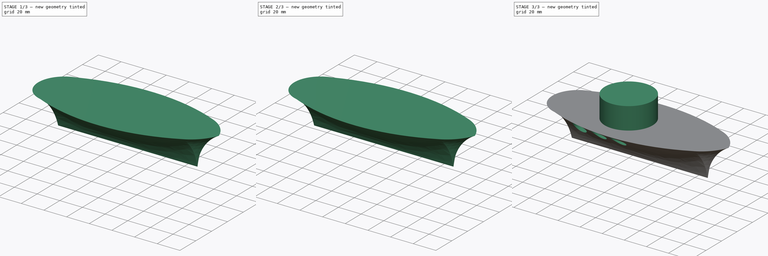
[diagram: build sequence overview — one tinted view per stage of 3, left to right]
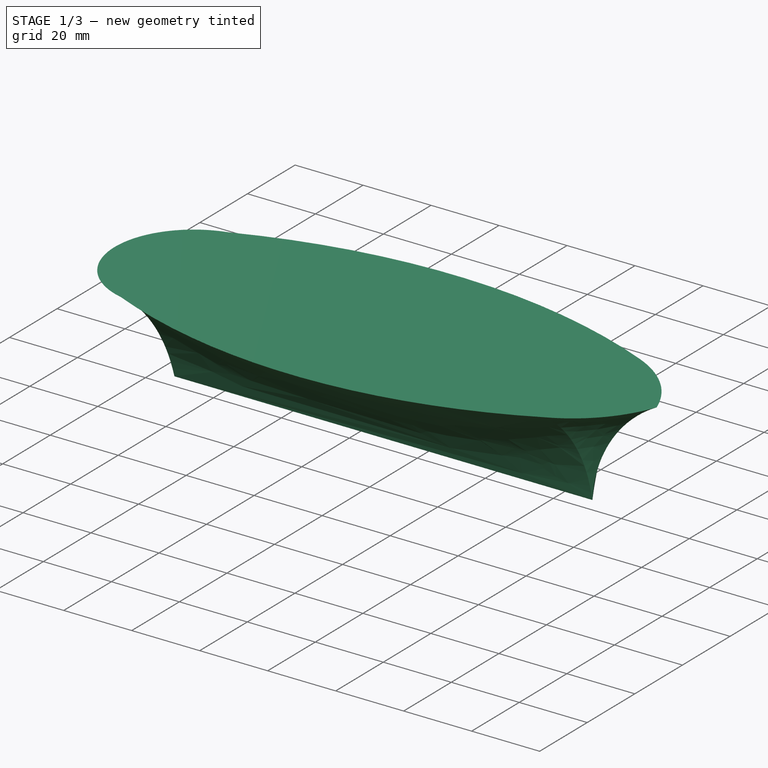
[diagram: stage 1 of 3 — iso view after this stage's code; geometry added in this stage tinted green]
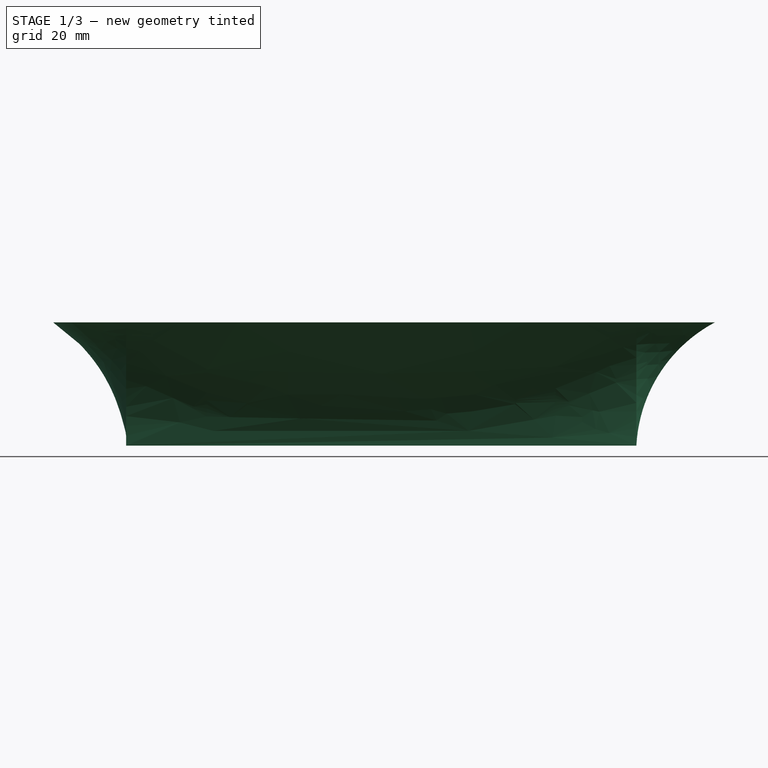
[diagram: stage 1 of 3 — front view after this stage's code; geometry added in this stage tinted green]
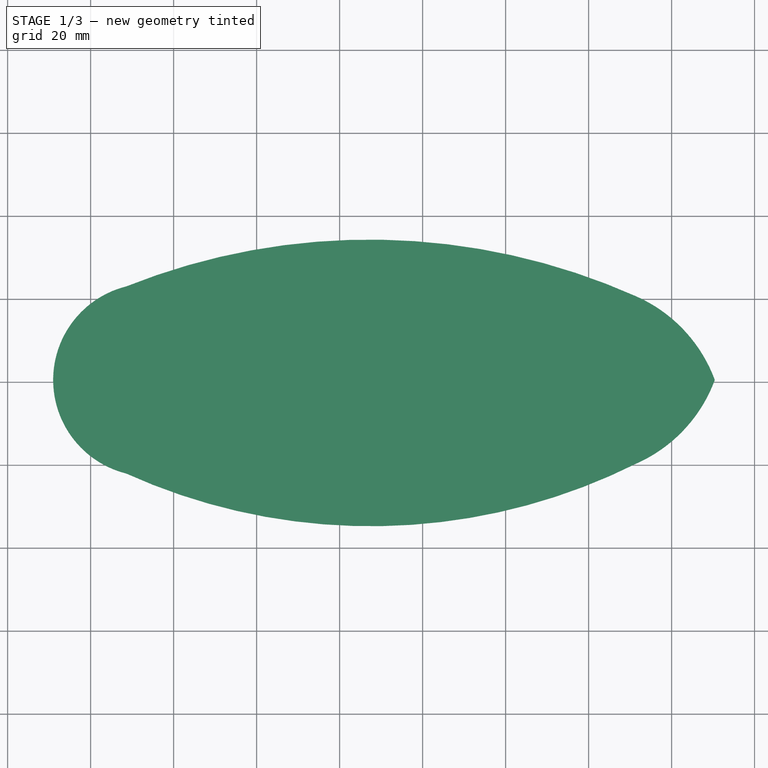
[diagram: stage 1 of 3 — top view after this stage's code; geometry added in this stage tinted green]
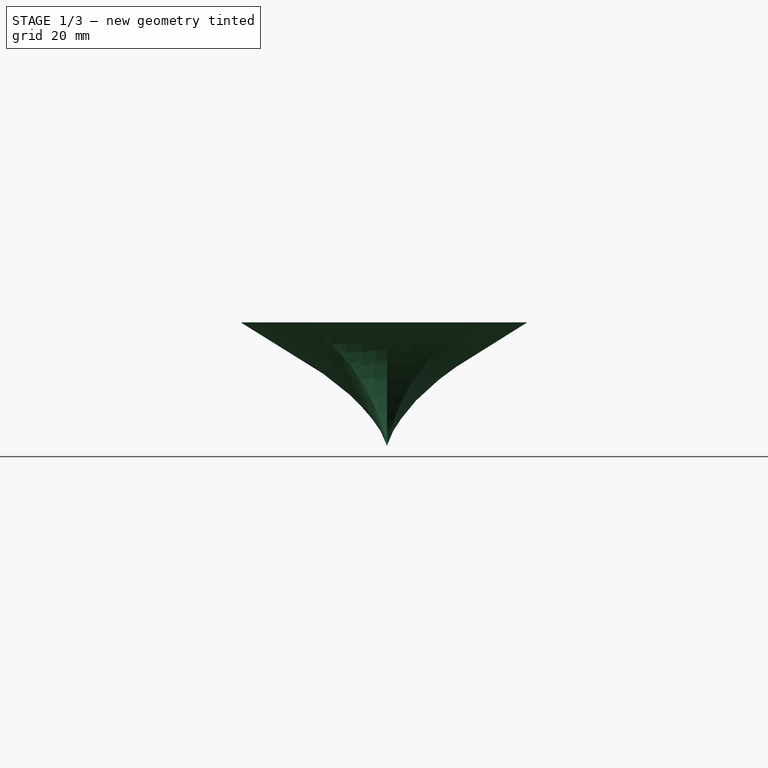
[diagram: stage 1 of 3 — right view after this stage's code; geometry added in this stage tinted green]
FCSTD DOCUMENT  (FreeCAD 0.21RUnknown)
Label: part19
License: All rights reserved
LicenseURL: http://en.wikipedia.org/wiki/All_rights_reserved
objects: Surface::Filling×9, Sketcher::SketchObject×7, Part::Compound×4, Part::RuledSurface×3, Part::Feature×3, Part::MultiFuse×1, PartDesign::FeatureBase×1, PartDesign::Pad×1, PartDesign::Pocket×1, PartDesign::Body×1
note: 33 computed .brp shape members not serialized (recipe doc carries the construction recipe); baked Part::Feature solids carry a one-line shape summary decoded from their .brp

FEATURE [Sketcher::SketchObject] Sketch
  FullyConstrained = false
  sketch-geometry (7):
    g0: ArcOfCircle CenterX=-45.7928 CenterY=0 CenterZ=0 NormalX=0 NormalY=0 NormalZ=1 AngleXU=0 Radius=23.2415 StartAngle=1.81692 EndAngle=4.46626
    g1: ArcOfCircle CenterX=57.1509 CenterY=-12.2691 CenterZ=0 NormalX=0 NormalY=0 NormalZ=1 AngleXU=0 Radius=35.4553 StartAngle=0.35335 EndAngle=1.15375
    g2: ArcOfCircle CenterX=57.1509 CenterY=12.2691 CenterZ=0 NormalX=0 NormalY=0 NormalZ=1 AngleXU=0 Radius=35.4553 StartAngle=5.12944 EndAngle=5.92984
    g3: ArcOfCircle CenterX=7.19704 CenterY=-124.107 CenterZ=0 NormalX=0 NormalY=0 NormalZ=1 AngleXU=0 Radius=157.943 StartAngle=1.1514 EndAngle=1.95126
    g4: ArcOfCircle CenterX=7.51242 CenterY=107.906 CenterZ=0 NormalX=0 NormalY=0 NormalZ=1 AngleXU=0 Radius=143.156 StartAngle=4.28784 EndAngle=5.17587
    g5: LineSegment StartX=90.4157 StartY=5.3e-15 StartZ=0 EndX=71.5126 EndY=0 EndZ=0
    g6: LineSegment StartX=-69.0343 StartY=0 StartZ=0 EndX=-51.4556 EndY=0 EndZ=0
  constraints (17):
    c: PointOnObject(g1,g-1)
    c: Coincident(g2,g1)
    c: Symmetric(g2,g1,g-1)
    c: PointOnObject(g0,g-1)
    c: Coincident(g3,g0)
    c: Coincident(g3,g1)
    c: Coincident(g4,g0)
    c: Coincident(g4,g2)
    c: Vertical(g0,g0)
    c: Vertical(g2,g1)
    c: Coincident(g5,g1)
    c: PointOnObject(g5,g-1)
    c: Vertical(g5,g1)
    c: PointOnObject(g6,g0)
    c: Horizontal(g6)
    c: PointOnObject(g6,g-1)
    c: Vertical(g6,g0)
FEATURE [Sketcher::SketchObject] Sketch001
  ExternalGeometry = -> [Sketch]
  FullyConstrained = false
  MapMode = 7
  Placement = pos=(71.5126,0,0) rot=(0.57735,0.57735,0.57735;2.0944rad)
  Support = -> [Sketch]
  sketch-geometry (2):
    g0: ArcOfCircle CenterX=-45.1283 CenterY=-38.632 CenterZ=0 NormalX=0 NormalY=0 NormalZ=1 AngleXU=0 Radius=46.0052 StartAngle=0.195562 EndAngle=0.996786
    g1: ArcOfCircle CenterX=45.1283 CenterY=-38.632 CenterZ=0 NormalX=0 NormalY=0 NormalZ=1 AngleXU=0 Radius=46.0052 StartAngle=2.14481 EndAngle=2.94603
  constraints (4):
    c: Coincident(g0,g-4)
    c: Coincident(g1,g-3)
    c: Coincident(g1,g0)
    c: Symmetric(g0,g1,g-2)
FEATURE [Sketcher::SketchObject] Sketch002
  ExternalGeometry = -> [Sketch,Sketch001]
  FullyConstrained = false
  Placement = pos=(0,0,0) rot=(1,0,0;1.5708rad)
  sketch-geometry (2):
    g0: ArcOfCircle CenterX=107.22 CenterY=-31.5613 CenterZ=0 NormalX=0 NormalY=0 NormalZ=1 AngleXU=0 Radius=35.756 StartAngle=2.06005 EndAngle=3.0893
    g1: LineSegment StartX=71.5126 StartY=-29.6923 StartZ=0 EndX=-51.4556 EndY=-29.6923 EndZ=0
  constraints (5):
    c: Coincident(g0,g-3)
    c: Coincident(g0,g-5)
    c: Coincident(g1,g0)
    c: Horizontal(g1)
    c: Vertical(g1,g-6)
FEATURE [Sketcher::SketchObject] Sketch003
  ExternalGeometry = -> [Sketch,Sketch002]
  FullyConstrained = false
  MapMode = 7
  Placement = pos=(-51.4556,0,0) rot=(0.57735,-0.57735,-0.57735;2.0944rad)
  Support = -> [Sketch]
  sketch-geometry (2):
    g0: ArcOfCircle CenterX=-51.8045 CenterY=-45.6177 CenterZ=0 NormalX=0 NormalY=0 NormalZ=1 AngleXU=0 Radius=54.197 StartAngle=0.298244 EndAngle=1.00043
    g1: ArcOfCircle CenterX=51.8045 CenterY=-45.6177 CenterZ=0 NormalX=0 NormalY=0 NormalZ=1 AngleXU=0 Radius=54.197 StartAngle=2.14117 EndAngle=2.84335
  constraints (5):
    c: Coincident(g0,g-3)
    c: Coincident(g0,g-5)
    c: Coincident(g1,g-4)
    c: Coincident(g1,g0)
    c: Equal(g0,g1)
FEATURE [Sketcher::SketchObject] Sketch004
  ExternalGeometry = -> [Sketch,Sketch003]
  FullyConstrained = false
  Placement = pos=(0,0,0) rot=(1,0,0;1.5708rad)
  sketch-geometry (1):
    g0: ArcOfCircle CenterX=-90.5821 CenterY=-32.8067 CenterZ=0 NormalX=0 NormalY=0 NormalZ=1 AngleXU=0 Radius=39.2503 StartAngle=0.0794292 EndAngle=0.989646
  constraints (2):
    c: Coincident(g0,g-5)
    c: Coincident(g-3,g0)
FEATURE [Surface::Filling] Surface
  Anisotropy = false
  BoundaryEdges = -> [Sketch001,Sketch,Sketch002]
  BoundaryOrder = [0,0,0]
  Degree = 3
  Iterations = 2
  MaximumDegree = 8
  MaximumSegments = 9
  PointsOnCurve = 15
  TolAngular = 0.01
  TolCurvature = 0.1
  Tolerance2d = 1e-05
  Tolerance3d = 0.0001
FEATURE [Surface::Filling] Surface001
  Anisotropy = false
  BoundaryEdges = -> [Sketch002,Sketch,Sketch001]
  BoundaryOrder = [0,0,0]
  Degree = 3
  Iterations = 2
  MaximumDegree = 8
  MaximumSegments = 9
  PointsOnCurve = 15
  TolAngular = 0.01
  TolCurvature = 0.1
  Tolerance2d = 1e-05
  Tolerance3d = 0.0001
FEATURE [Part::RuledSurface] Ruled_Surface
  Curve1 = -> Surface [Edge2]
  Curve2 = -> Surface001 [Edge2]
  Orientation = 0
FEATURE [Surface::Filling] Surface002
  Anisotropy = false
  BoundaryEdges = -> [Surface,Ruled_Surface,Surface001]
  BoundaryOrder = [0,0,0]
  Degree = 3
  Iterations = 2
  MaximumDegree = 8
  MaximumSegments = 9
  PointsOnCurve = 15
  TolAngular = 0.01
  TolCurvature = 0.1
  Tolerance2d = 1e-05
  Tolerance3d = 0.0001
FEATURE [Part::Compound] Compound
  Links = -> [Surface002,Ruled_Surface,Surface001,Surface]
FEATURE [Part::Feature] Compound_solid  label="Compound (Solid)"
  shape: bbox 29.84 x 45.36 x 40.55 mm, 4 faces (baked)
FEATURE [Surface::Filling] Surface003
  Anisotropy = false
  BoundaryEdges = -> [Sketch003,Sketch]
  BoundaryOrder = [0,0,0]
  Degree = 2
  Iterations = 2
  MaximumDegree = 8
  MaximumSegments = 9
  PointsOnCurve = 15
  TolAngular = 0.01
  TolCurvature = 0.1
  Tolerance2d = 1e-05
  Tolerance3d = 0.0001
  UnboundEdges = -> [Sketch004]
  UnboundOrder = [0]
FEATURE [Part::RuledSurface] Ruled_Surface001
  Curve1 = -> Surface003 [Edge1]
  Curve2 = -> Surface003 [Edge2]
  Orientation = 0
FEATURE [Surface::Filling] Surface004
  Anisotropy = false
  BoundaryEdges = -> [Ruled_Surface001,Surface003]
  BoundaryOrder = [0,0]
  Degree = 3
  Iterations = 2
  MaximumDegree = 8
  MaximumSegments = 9
  PointsOnCurve = 15
  TolAngular = 0.01
  TolCurvature = 0.1
  Tolerance2d = 1e-05
  Tolerance3d = 0.0001
FEATURE [Part::Compound] Compound001
  Links = -> [Ruled_Surface001,Surface004,Surface003]
FEATURE [Part::Feature] Compound001_solid  label="Compound001 (Solid)"
  shape: bbox 53.01 x 49.59 x 51.28 mm, 3 faces (baked)
FEATURE [Surface::Filling] Surface005
  Anisotropy = false
  BoundaryEdges = -> [Sketch,Sketch003,Sketch002,Sketch001]
  BoundaryOrder = [0,0,0,0]
  Degree = 3
  Iterations = 2
  MaximumDegree = 8
  MaximumSegments = 9
  PointsOnCurve = 15
  TolAngular = 0.01
  TolCurvature = 0.1
  Tolerance2d = 1e-05
  Tolerance3d = 0.0001
FEATURE [Surface::Filling] Surface006
  Anisotropy = false
  BoundaryEdges = -> [Sketch,Sketch001,Sketch002,Sketch003]
  BoundaryOrder = [0,0,0,0]
  Degree = 3
  Iterations = 2
  MaximumDegree = 8
  MaximumSegments = 9
  PointsOnCurve = 15
  TolAngular = 0.01
  TolCurvature = 0.1
  Tolerance2d = 1e-05
  Tolerance3d = 0.0001
FEATURE [Part::RuledSurface] Ruled_Surface002
  Curve1 = -> Surface005 [Edge1]
  Curve2 = -> Surface006 [Edge1]
  Orientation = 0
FEATURE [Surface::Filling] Surface007
  Anisotropy = false
  BoundaryEdges = -> [Surface005,Ruled_Surface002,Surface006]
  BoundaryOrder = [0,0,0]
  Degree = 3
  Iterations = 2
  MaximumDegree = 8
  MaximumSegments = 9
  PointsOnCurve = 15
  TolAngular = 0.01
  TolCurvature = 0.1
  Tolerance2d = 1e-05
  Tolerance3d = 0.0001
FEATURE [Surface::Filling] Surface008
  Anisotropy = false
  BoundaryEdges = -> [Ruled_Surface002,Surface005,Surface006]
  BoundaryOrder = [0,0,0]
  Degree = 3
  Iterations = 2
  MaximumDegree = 8
  MaximumSegments = 9
  PointsOnCurve = 15
  TolAngular = 0.01
  TolCurvature = 0.1
  Tolerance2d = 1e-05
  Tolerance3d = 0.0001
FEATURE [Part::Compound] Compound002
  Links = -> [Surface005,Surface008,Ruled_Surface002,Surface006,Surface007]
FEATURE [Part::Feature] Compound002_solid  label="Compound002 (Solid)"
  shape: bbox 135.9 x 74.12 x 41.64 mm, 5 faces (baked)
FEATURE [Part::Compound] Compound003
  Links = -> [Compound002_solid,Compound001_solid,Compound_solid]
FEATURE [Part::MultiFuse] Fusion
  Shapes = -> [Compound003]
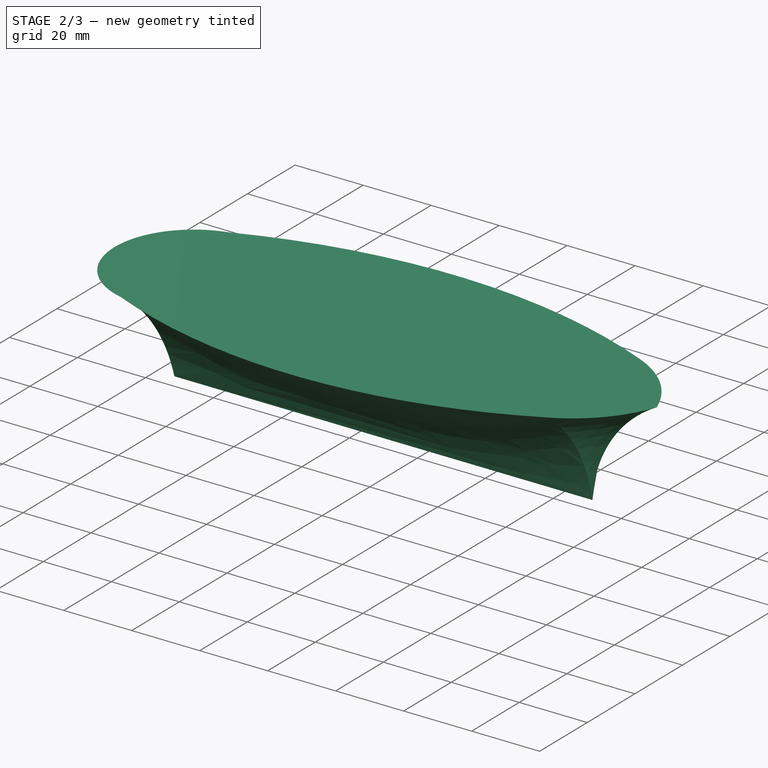
[diagram: stage 2 of 3 — iso view after this stage's code; geometry added in this stage tinted green]
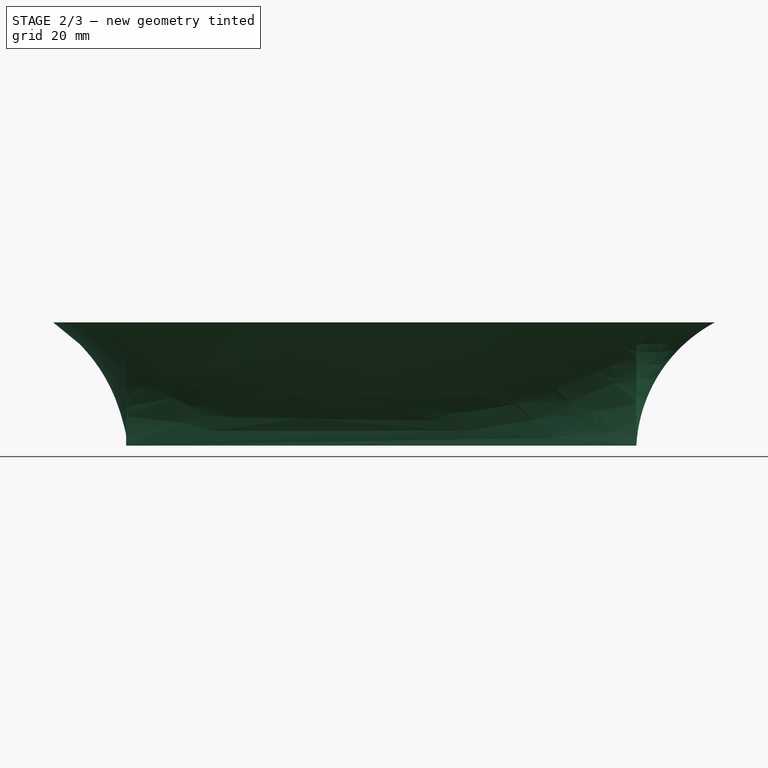
[diagram: stage 2 of 3 — front view after this stage's code; geometry added in this stage tinted green]
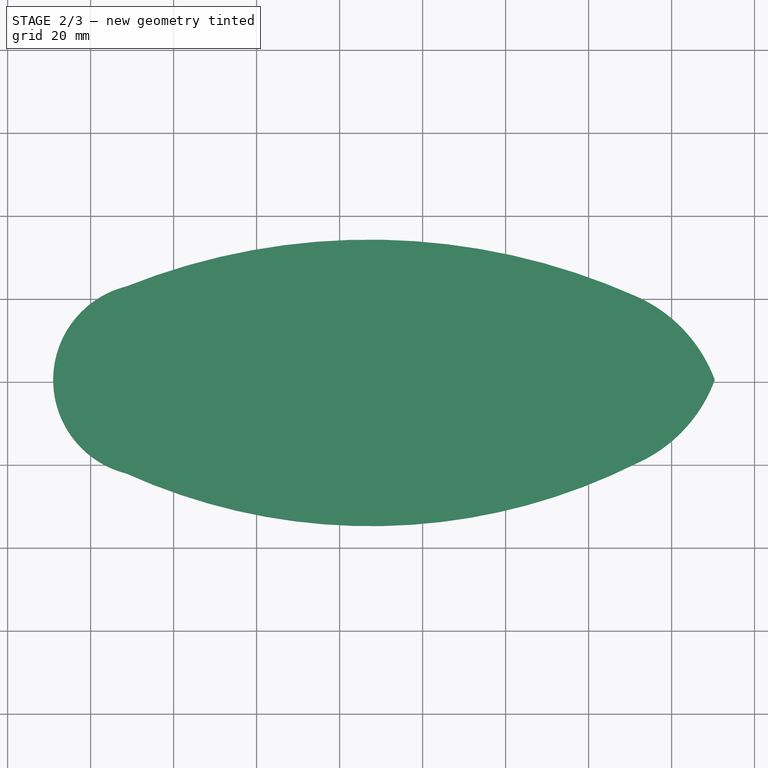
[diagram: stage 2 of 3 — top view after this stage's code; geometry added in this stage tinted green]
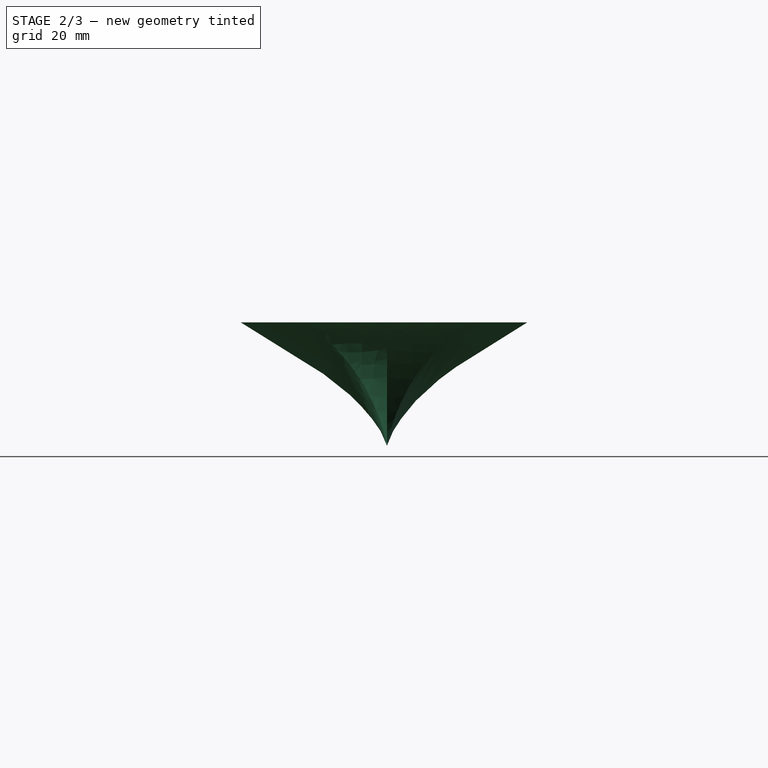
[diagram: stage 2 of 3 — right view after this stage's code; geometry added in this stage tinted green]
FEATURE [PartDesign::FeatureBase] BaseFeature
  BaseFeature = -> Fusion
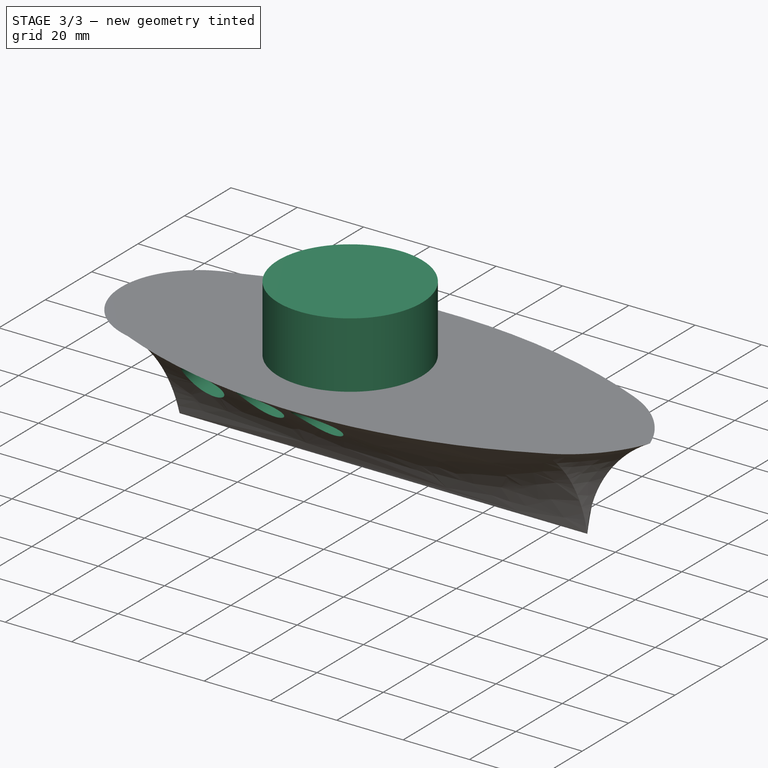
[diagram: stage 3 of 3 — iso view after this stage's code; geometry added in this stage tinted green]
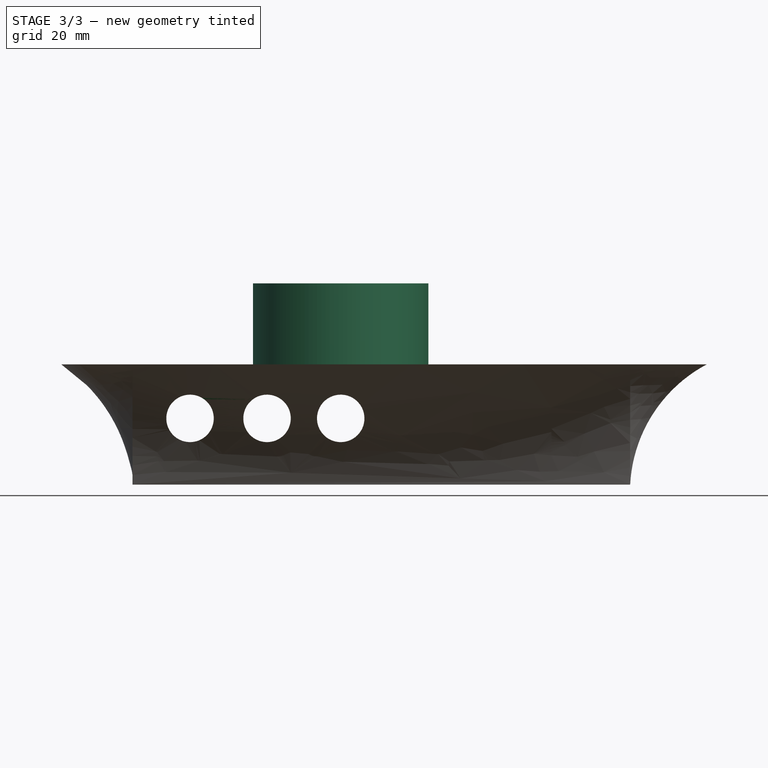
[diagram: stage 3 of 3 — front view after this stage's code; geometry added in this stage tinted green]
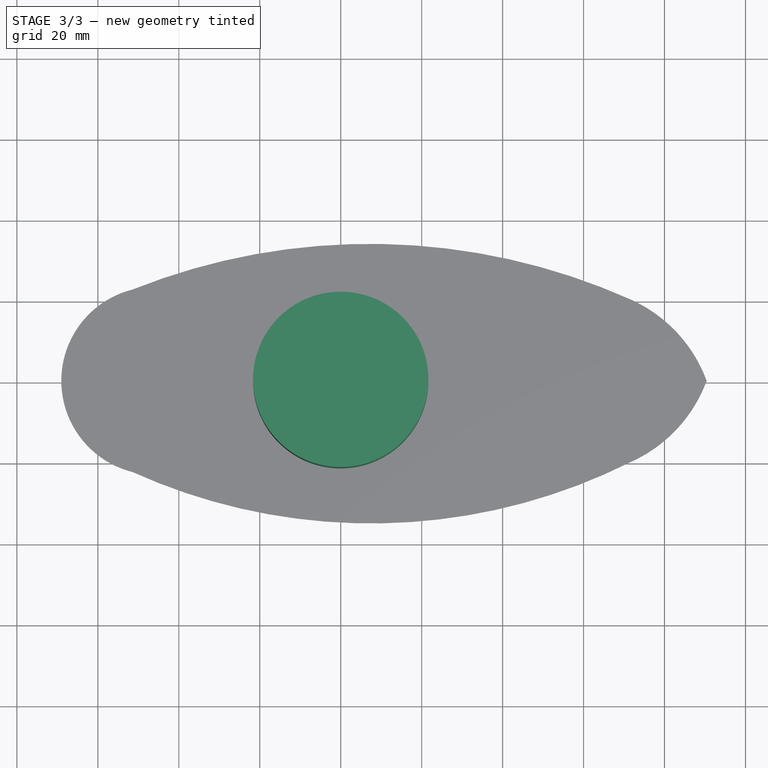
[diagram: stage 3 of 3 — top view after this stage's code; geometry added in this stage tinted green]
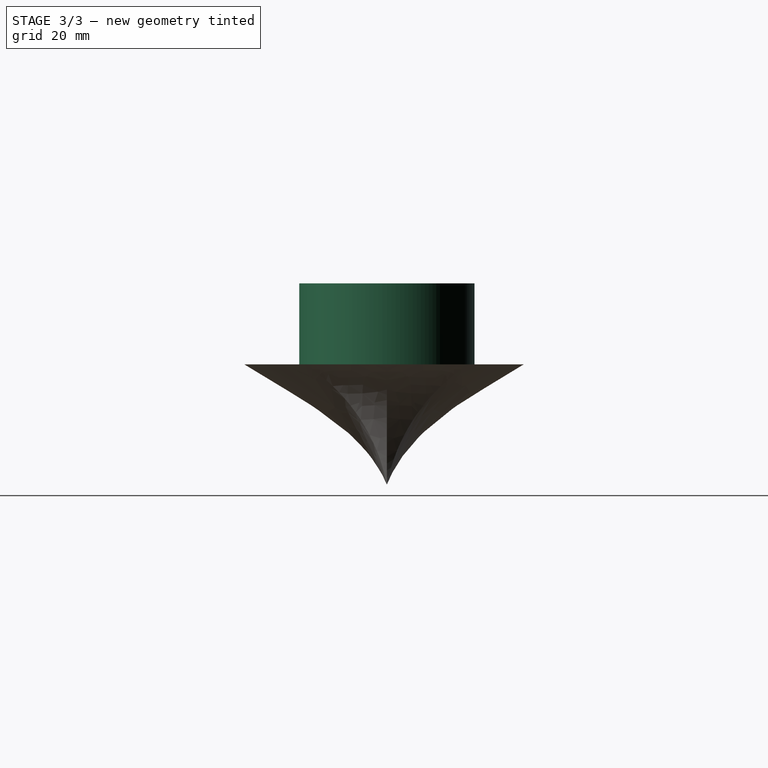
[diagram: stage 3 of 3 — right view after this stage's code; geometry added in this stage tinted green]
FEATURE [Sketcher::SketchObject] Sketch005
  FullyConstrained = false
  MapMode = 5
  Support = -> [BaseFeature]
  sketch-geometry (1):
    g0: Circle CenterX=0 CenterY=0 CenterZ=0 NormalX=0 NormalY=0 NormalZ=1 AngleXU=0 Radius=21.6678
  constraints (1):
    c: Coincident(g0,g-1)
FEATURE [PartDesign::Pad] Pad
  BaseFeature = -> BaseFeature
  Direction = (0,0,1)
  Length = 20
  Length2 = 10
  Profile = -> Sketch005
  ReferenceAxis = -> Sketch005 [N_Axis]
  Type = 0
FEATURE [Sketcher::SketchObject] Sketch006
  FullyConstrained = false
  MapMode = 5
  Placement = pos=(0,0,0) rot=(1,0,0;1.5708rad)
  Support = -> [XZ_Plane]
  sketch-geometry (3):
    g0: Circle CenterX=0 CenterY=-13.3425 CenterZ=0 NormalX=0 NormalY=0 NormalZ=1 AngleXU=0 Radius=5.86077
    g1: Circle CenterX=-37.2255 CenterY=-13.3425 CenterZ=0 NormalX=0 NormalY=0 NormalZ=1 AngleXU=0 Radius=5.86077
    g2: Circle CenterX=-18.2042 CenterY=-13.3425 CenterZ=0 NormalX=0 NormalY=0 NormalZ=1 AngleXU=0 Radius=5.86077
  constraints (5):
    c: PointOnObject(g0,g-2)
    c: Equal(g2,g1)
    c: Equal(g1,g0)
    c: Horizontal(g1,g2)
    c: Horizontal(g2,g0)
FEATURE [PartDesign::Pocket] Pocket
  BaseFeature = -> Pad
  Direction = (0,1,-2e-16)
  Length = 5
  Length2 = 5
  Midplane = true
  Profile = -> Sketch006
  ReferenceAxis = -> Sketch006 [N_Axis]
  Type = 1
FEATURE [PartDesign::Body] Body
  BaseFeature = -> Fusion
  Group = -> [BaseFeature,Sketch005,Pad,Sketch006,Pocket]
  Origin = -> Origin
  Tip = -> Pocket
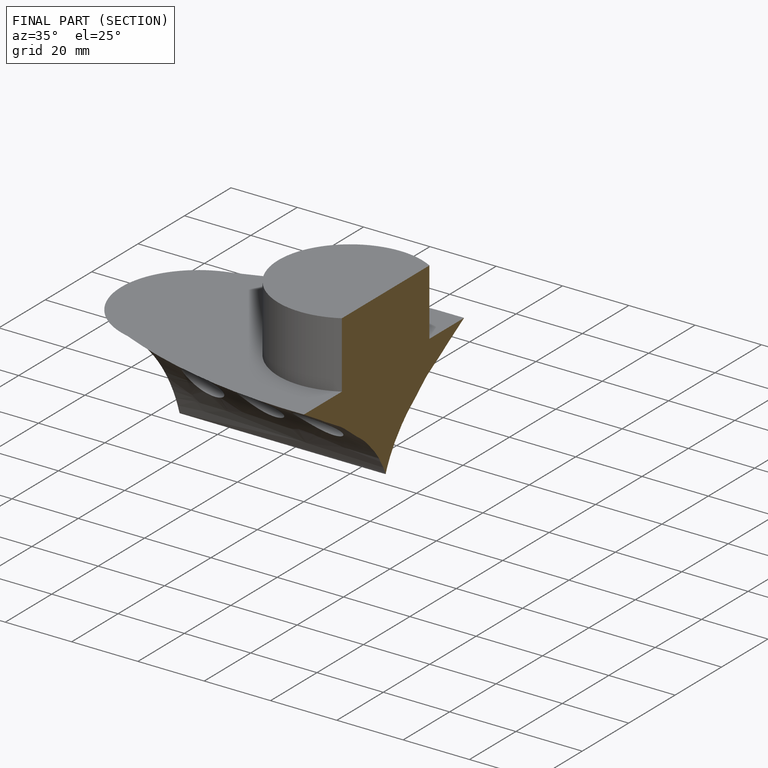
[diagram: finished part — half-section view (interior)]
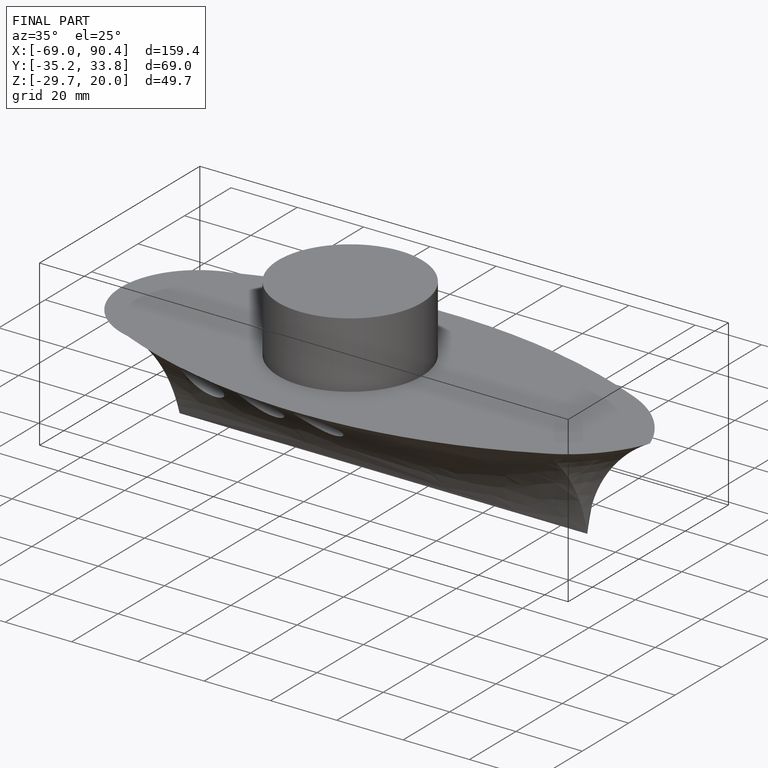
[diagram: finished part — iso view with bounding-box wireframe]
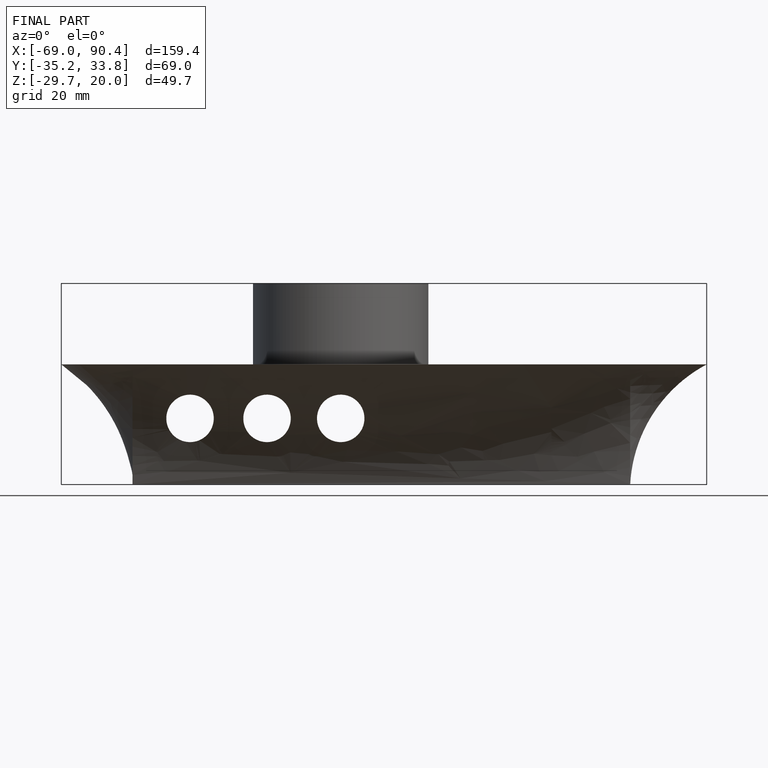
[diagram: finished part — front view with bounding-box wireframe]
